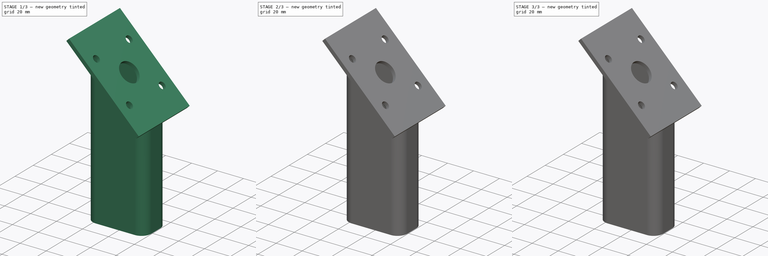
[diagram: build sequence overview — one tinted view per stage of 3, left to right]
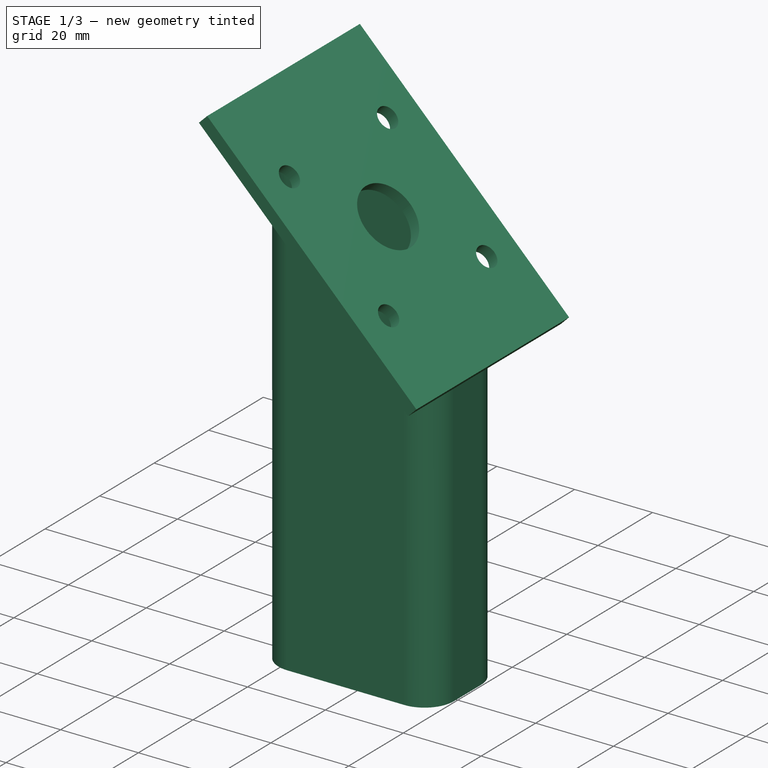
[diagram: stage 1 of 3 — iso view after this stage's code; geometry added in this stage tinted green]
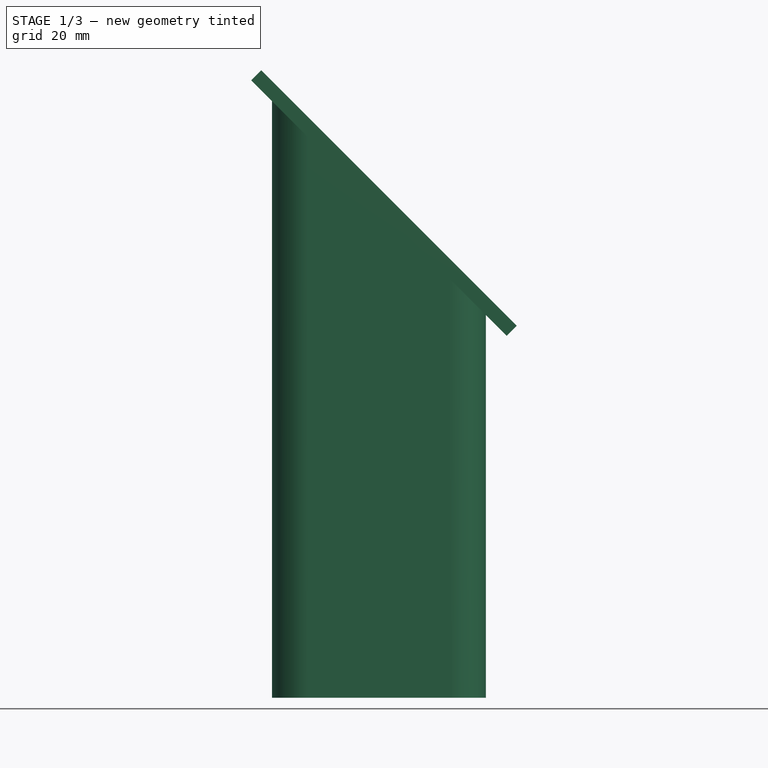
[diagram: stage 1 of 3 — front view after this stage's code; geometry added in this stage tinted green]
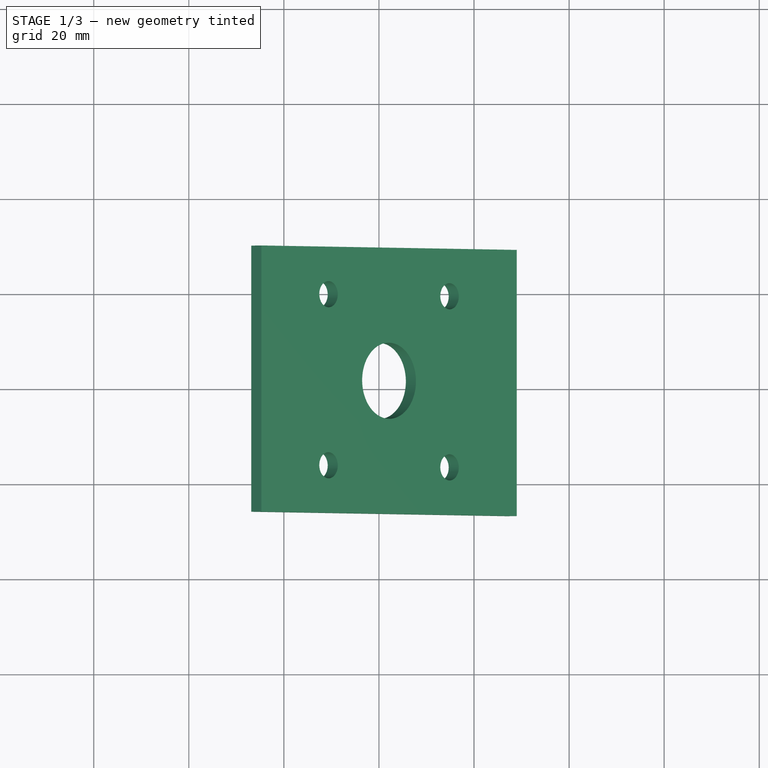
[diagram: stage 1 of 3 — top view after this stage's code; geometry added in this stage tinted green]
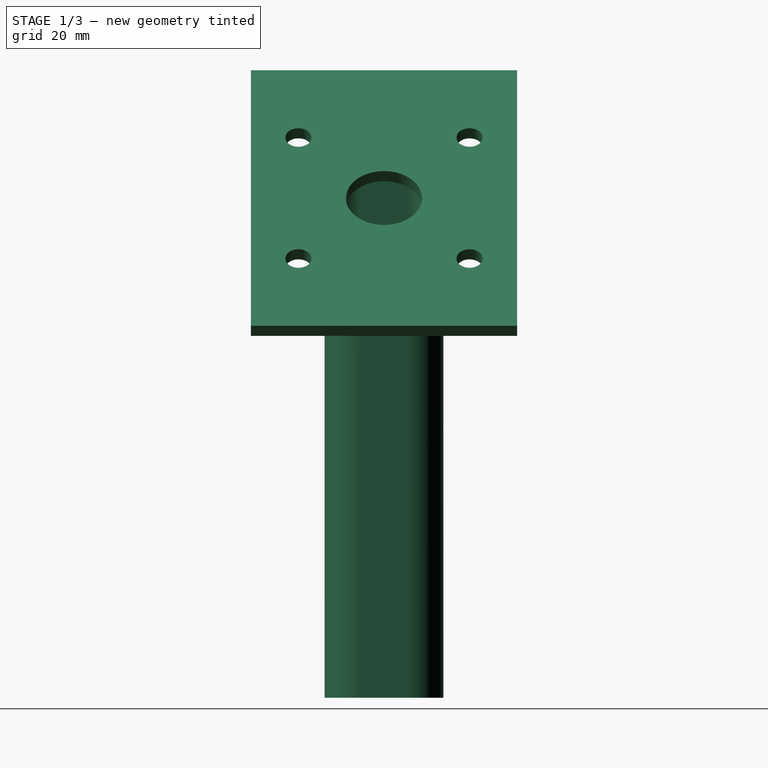
[diagram: stage 1 of 3 — right view after this stage's code; geometry added in this stage tinted green]
FCSTD DOCUMENT  (FreeCAD 0.20R25352 (Git))
Label: scotty panel antenna handle
License: All rights reserved
LicenseURL: http://en.wikipedia.org/wiki/All_rights_reserved
objects: Sketcher::SketchObject×3, PartDesign::Plane×2, PartDesign::Pad×2, PartDesign::Fillet×1, PartDesign::Pocket×1, PartDesign::LinearPattern×1, PartDesign::Body×1
note: 15 computed .brp shape members not serialized (recipe doc carries the construction recipe); baked Part::Feature solids carry a one-line shape summary decoded from their .brp

FEATURE [Sketcher::SketchObject] Sketch
  FullyConstrained = true
  MapMode = 5
  Support = -> [XY_Plane]
  sketch-geometry (20):
    g0: ArcOfCircle CenterX=-15 CenterY=5 CenterZ=0 NormalX=0 NormalY=0 NormalZ=1 AngleXU=0 Radius=7.5 StartAngle=1.5708 EndAngle=3.14159
    g1: LineSegment StartX=-15 StartY=12.5 StartZ=0 EndX=15 EndY=12.5 EndZ=0
    g2: ArcOfCircle CenterX=15 CenterY=5 CenterZ=0 NormalX=0 NormalY=0 NormalZ=1 AngleXU=0 Radius=7.5 StartAngle=1e-16 EndAngle=1.5708
    g3: LineSegment StartX=22.5 StartY=5 StartZ=0 EndX=22.5 EndY=-5 EndZ=0
    g4: ArcOfCircle CenterX=15 CenterY=-5 CenterZ=0 NormalX=0 NormalY=0 NormalZ=1 AngleXU=0 Radius=7.5 StartAngle=4.71239 EndAngle=6.28319
    g5: LineSegment StartX=15 StartY=-12.5 StartZ=0 EndX=-15 EndY=-12.5 EndZ=0
    g6: ArcOfCircle CenterX=-15 CenterY=-5 CenterZ=0 NormalX=0 NormalY=0 NormalZ=1 AngleXU=0 Radius=7.5 StartAngle=3.14159 EndAngle=4.71239
    g7: LineSegment StartX=-22.5 StartY=-5 StartZ=0 EndX=-22.5 EndY=5 EndZ=0
    g8: GeomPoint X=-22.5 Y=12.5 Z=0
    g9: GeomPoint X=22.5 Y=-12.5 Z=0
    g10: ArcOfCircle CenterX=-15 CenterY=5 CenterZ=0 NormalX=0 NormalY=0 NormalZ=1 AngleXU=0 Radius=5.5 StartAngle=1.5708 EndAngle=3.14159
    g11: LineSegment StartX=-15 StartY=10.5 StartZ=0 EndX=15 EndY=10.5 EndZ=0
    g12: ArcOfCircle CenterX=15 CenterY=5 CenterZ=0 NormalX=0 NormalY=0 NormalZ=1 AngleXU=0 Radius=5.5 StartAngle=1e-16 EndAngle=1.5708
    g13: LineSegment StartX=20.5 StartY=5 StartZ=0 EndX=20.5 EndY=-5 EndZ=0
    g14: ArcOfCircle CenterX=15 CenterY=-5 CenterZ=0 NormalX=0 NormalY=0 NormalZ=1 AngleXU=0 Radius=5.5 StartAngle=4.71239 EndAngle=6.28319
    g15: LineSegment StartX=15 StartY=-10.5 StartZ=0 EndX=-15 EndY=-10.5 EndZ=0
    g16: ArcOfCircle CenterX=-15 CenterY=-5 CenterZ=0 NormalX=0 NormalY=0 NormalZ=1 AngleXU=0 Radius=5.5 StartAngle=3.14159 EndAngle=4.71239
    g17: LineSegment StartX=-20.5 StartY=-5 StartZ=0 EndX=-20.5 EndY=5 EndZ=0
    g18: GeomPoint X=-20.5 Y=10.5 Z=0
    g19: GeomPoint X=20.5 Y=-10.5 Z=0
  constraints (46):
    c: Tangent(g0,g1) = 1.5708
    c: Tangent(g1,g2) = 1.5708
    c: Tangent(g2,g3) = 1.5708
    c: Tangent(g3,g4) = 1.5708
    c: Tangent(g4,g5) = 1.5708
    c: Tangent(g5,g6) = 1.5708
    c: Tangent(g6,g7) = 1.5708
    c: Tangent(g7,g0) = 1.5708
    c: Horizontal(g1)
    c: Horizontal(g5)
    c: Vertical(g3)
    c: Vertical(g7)
    c: Equal(g0,g2)
    c: Equal(g2,g4)
    c: Equal(g4,g6)
    c: PointOnObject(g8,g1)
    c: PointOnObject(g8,g7)
    c: PointOnObject(g9,g3)
    c: PointOnObject(g9,g5)
    c: Symmetric(g0,g4,g-1)
    c: DistanceX(g0,g2) = 45
    c: DistanceY(g5,g0) = 25
    c: Diameter(g0) = 15
    c: Tangent(g10,g11) = 1.5708
    c: Tangent(g11,g12) = 1.5708
    c: Tangent(g12,g13) = 1.5708
    c: Tangent(g13,g14) = 1.5708
    c: Tangent(g14,g15) = 1.5708
    c: Tangent(g15,g16) = 1.5708
    c: Tangent(g16,g17) = 1.5708
    c: Tangent(g17,g10) = 1.5708
    c: Horizontal(g11)
    c: Horizontal(g15)
    c: Vertical(g13)
    c: Vertical(g17)
    c: Equal(g10,g12)
    c: Equal(g12,g14)
    c: Equal(g14,g16)
    c: PointOnObject(g18,g11)
    c: PointOnObject(g18,g17)
    c: PointOnObject(g19,g13)
    c: PointOnObject(g19,g15)
    c: Symmetric(g10,g14,g-1)
    c: Vertical(g0,g10)
    c: Horizontal(g0,g10)
    c: DistanceY(g10,g0) = 2
FEATURE [PartDesign::Plane] DatumPlane
  AttachmentOffset = pos=(0,0,103) rot=(0,1,0;0.785398rad)
  Length = 168.871
  MapMode = 5
  Placement = pos=(0,0,103) rot=(0,1,0;0.785398rad)
  ResizeMode = 0
  Support = -> [XY_Plane]
  Width = 74.3614
FEATURE [PartDesign::Pad] Pad
  Direction = (0,0,1)
  Length = 100
  Length2 = 100
  Profile = -> Sketch
  Type = 3
  UpToFace = -> DatumPlane [XY_Plane.]
FEATURE [Sketcher::SketchObject] Sketch001
  FullyConstrained = true
  MapMode = 5
  Placement = pos=(0,0,103) rot=(0,1,0;0.785398rad)
  Support = -> [DatumPlane]
  sketch-geometry (10):
    g0: LineSegment StartX=38 StartY=-28 StartZ=0 EndX=38 EndY=28 EndZ=0
    g1: LineSegment StartX=38 StartY=28 StartZ=0 EndX=-38 EndY=28 EndZ=0
    g2: LineSegment StartX=-38 StartY=28 StartZ=0 EndX=-38 EndY=-28 EndZ=0
    g3: LineSegment StartX=-38 StartY=-28 StartZ=0 EndX=38 EndY=-28 EndZ=0
    g4: GeomPoint X=0 Y=0 Z=0
    g5: Circle CenterX=-18 CenterY=18 CenterZ=0 NormalX=0 NormalY=0 NormalZ=1 AngleXU=0 Radius=2.75
    g6: Circle CenterX=18 CenterY=18 CenterZ=0 NormalX=0 NormalY=0 NormalZ=1 AngleXU=0 Radius=2.75
    g7: Circle CenterX=-18 CenterY=-18 CenterZ=0 NormalX=0 NormalY=0 NormalZ=1 AngleXU=0 Radius=2.75
    g8: Circle CenterX=18 CenterY=-18 CenterZ=0 NormalX=0 NormalY=0 NormalZ=1 AngleXU=0 Radius=2.75
    g9: Circle CenterX=0 CenterY=0 CenterZ=0 NormalX=0 NormalY=0 NormalZ=1 AngleXU=0 Radius=8
  constraints (25):
    c: Coincident(g0,g1)
    c: Coincident(g1,g2)
    c: Coincident(g2,g3)
    c: Coincident(g3,g0)
    c: Horizontal(g1)
    c: Horizontal(g3)
    c: Vertical(g0)
    c: Vertical(g2)
    c: Symmetric(g1,g0,g4)
    c: Coincident(g4,g-1)
    c: DistanceY(g7,g5) = 36
    c: DistanceX(g5,g6) = 36
    c: Horizontal(g5,g6)
    c: Vertical(g6,g8)
    c: Horizontal(g8,g7)
    c: Vertical(g7,g5)
    c: Symmetric(g7,g6,g-1)
    c: Diameter(g5) = 5.5
    c: Equal(g5,g6)
    c: Equal(g5,g7)
    c: Equal(g7,g8)
    c: DistanceY(g5,g1) = 10
    c: DistanceX(g1,g5) = 20
    c: Coincident(g9,g-1)
    c: Diameter(g9) = 16
FEATURE [PartDesign::Pad] Pad001
  BaseFeature = -> Pad
  Direction = (0.707107,0,0.707107)
  Length = 3
  Length2 = 100
  Profile = -> Sketch001
  Type = 0
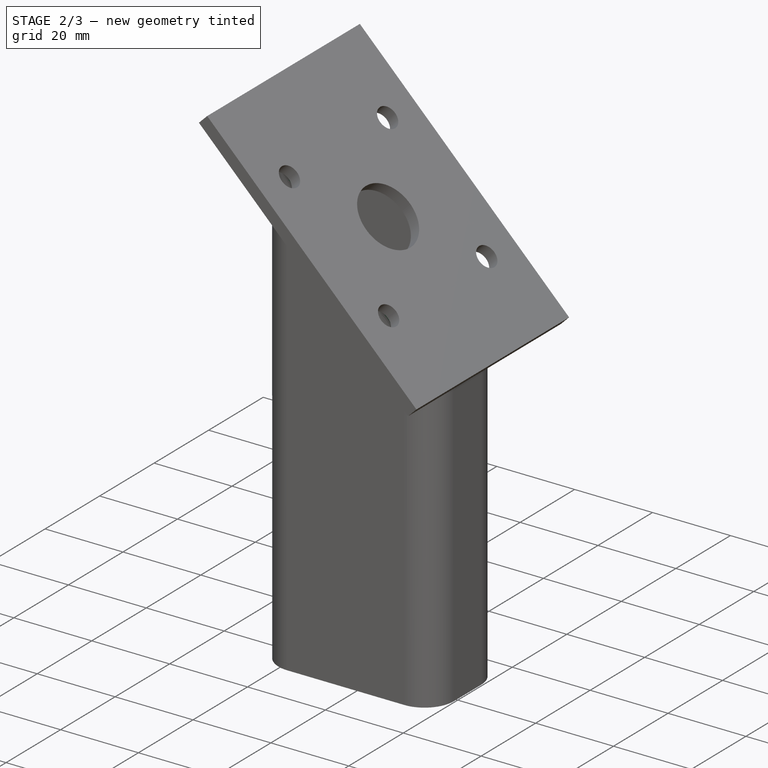
[diagram: stage 2 of 3 — iso view after this stage's code; geometry added in this stage tinted green]
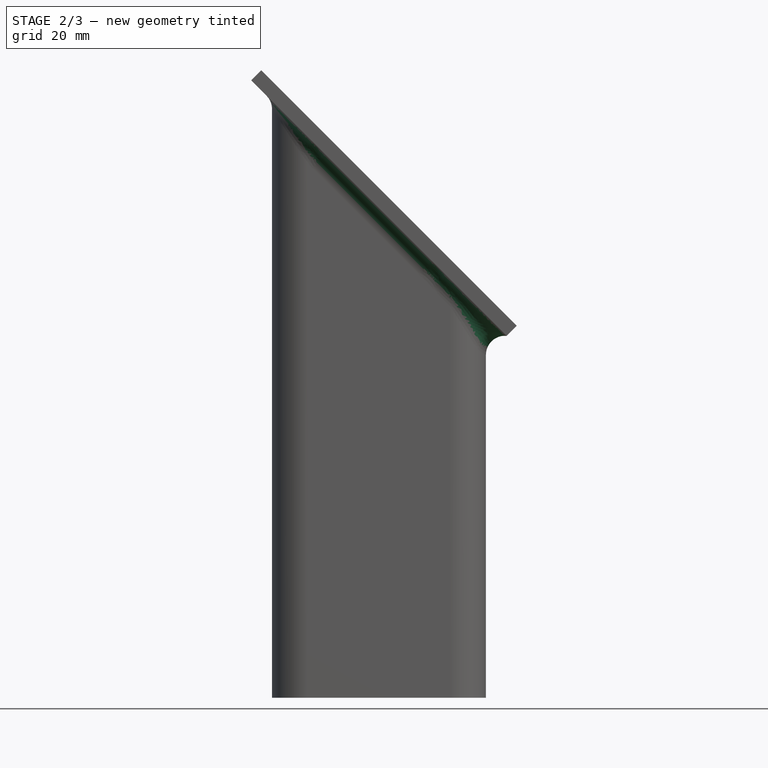
[diagram: stage 2 of 3 — front view after this stage's code; geometry added in this stage tinted green]
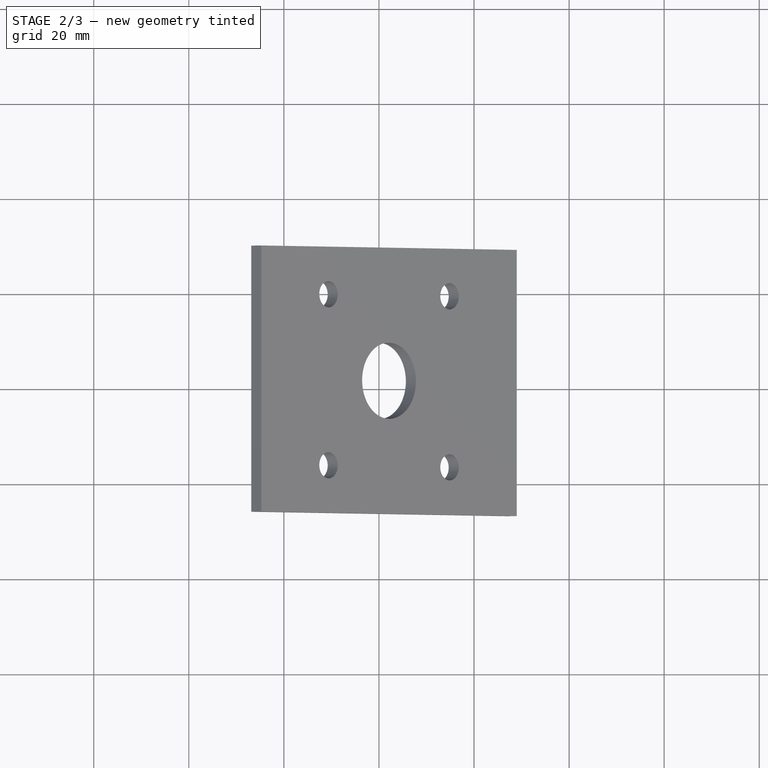
[diagram: stage 2 of 3 — top view after this stage's code; geometry added in this stage tinted green]
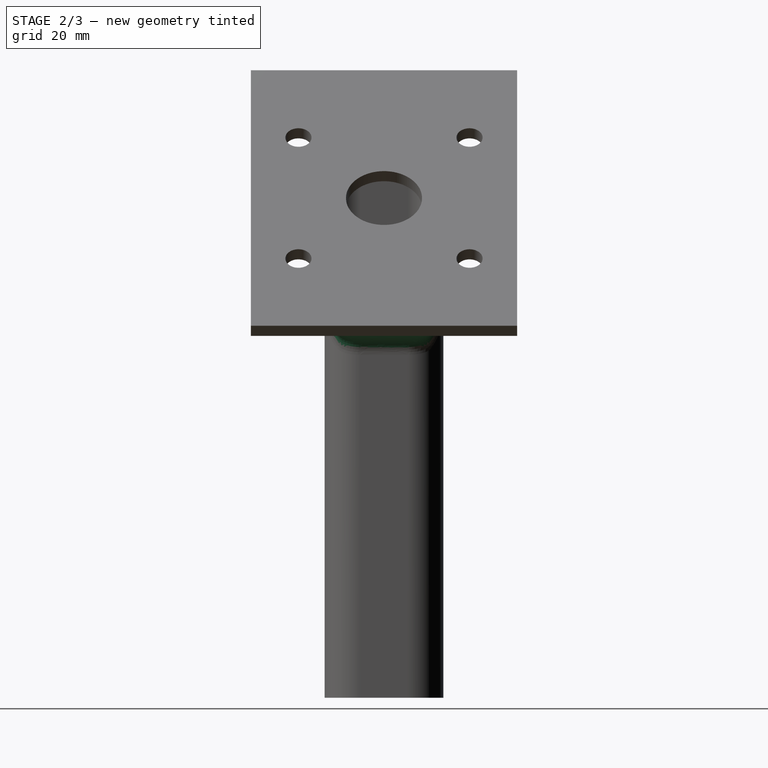
[diagram: stage 2 of 3 — right view after this stage's code; geometry added in this stage tinted green]
FEATURE [PartDesign::Fillet] Fillet
  Base = -> Pad001 [Edge17]
  BaseFeature = -> Pad001
  Radius = 4
  SupportTransform = false
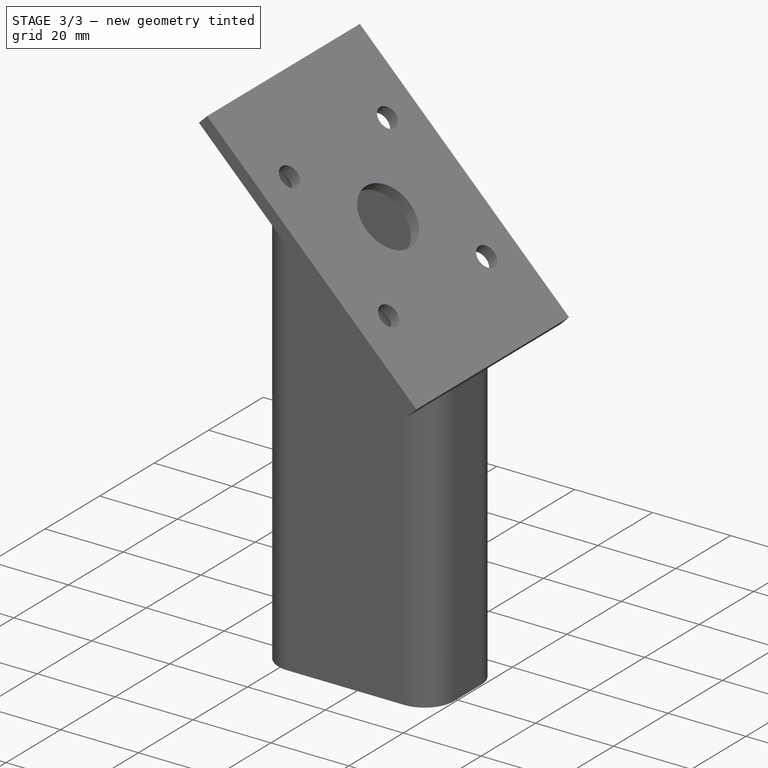
[diagram: stage 3 of 3 — iso view after this stage's code; geometry added in this stage tinted green]
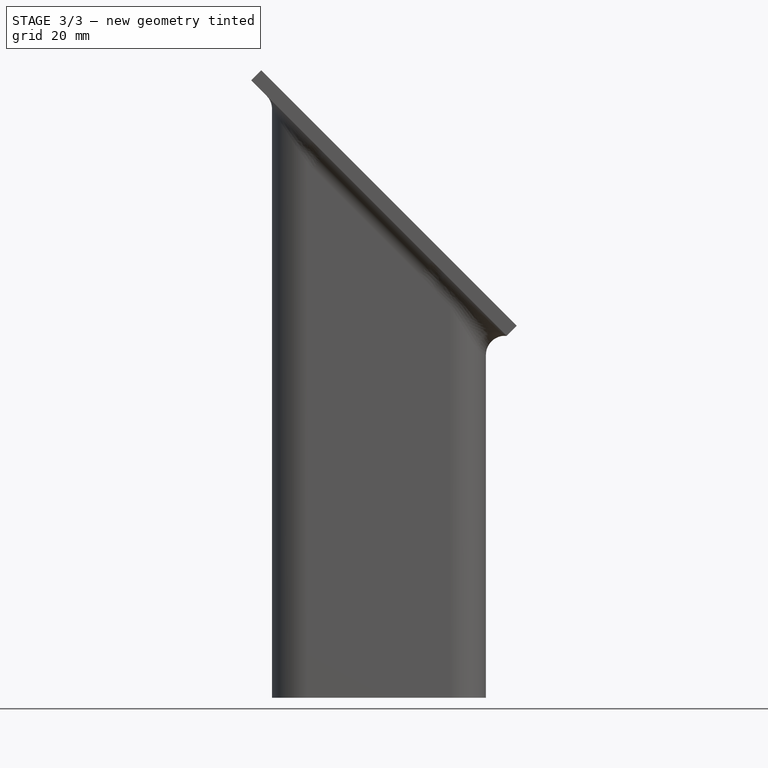
[diagram: stage 3 of 3 — front view after this stage's code; geometry added in this stage tinted green]
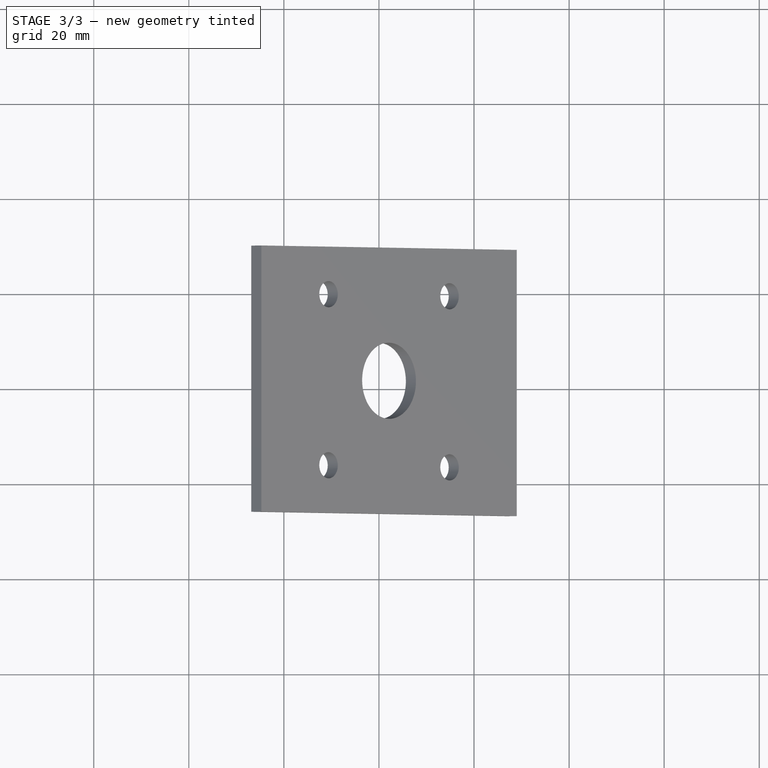
[diagram: stage 3 of 3 — top view after this stage's code; geometry added in this stage tinted green]
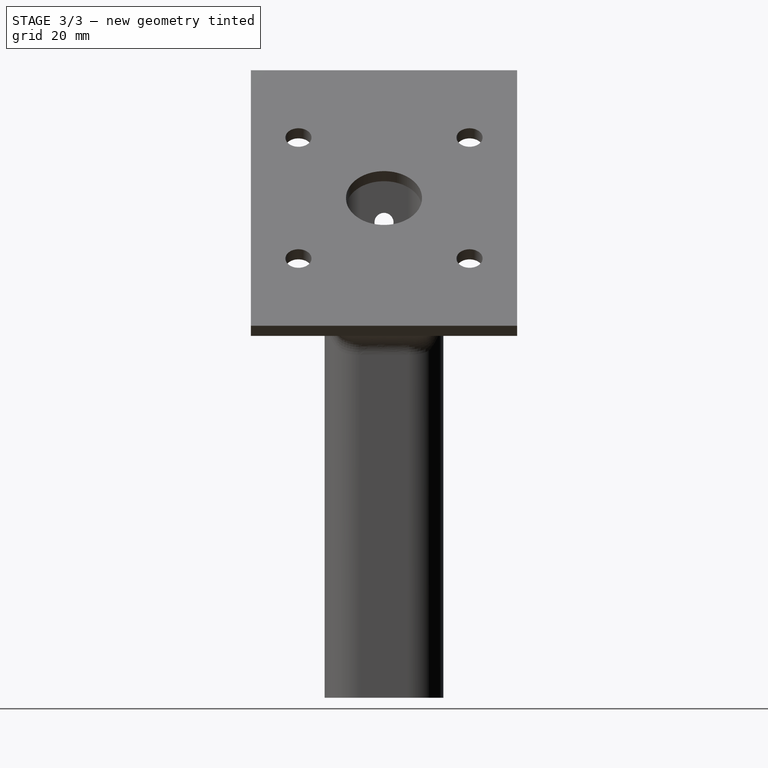
[diagram: stage 3 of 3 — right view after this stage's code; geometry added in this stage tinted green]
FEATURE [PartDesign::Plane] DatumPlane001
  AttachmentOffset = pos=(0,0,-23) rot=(0,0,1;0rad)
  Length = 74.7526
  MapMode = 5
  Placement = pos=(-23,5.1e-15,-5.1e-15) rot=(0.57735,0.57735,0.57735;2.0944rad)
  ResizeMode = 0
  Support = -> [YZ_Plane]
  Width = 175.744
FEATURE [Sketcher::SketchObject] Sketch002
  FullyConstrained = true
  MapMode = 5
  Placement = pos=(-23,5.1e-15,-5.1e-15) rot=(0.57735,0.57735,0.57735;2.0944rad)
  Support = -> [DatumPlane001]
  sketch-geometry (1):
    g0: Circle CenterX=0 CenterY=100 CenterZ=0 NormalX=0 NormalY=0 NormalZ=1 AngleXU=0 Radius=2
  constraints (3):
    c: PointOnObject(g0,g-2)
    c: DistanceY(g-1,g0) = 100
    c: Diameter(g0) = 4
FEATURE [PartDesign::Pocket] Pocket
  BaseFeature = -> Fillet
  Length = 5
  Length2 = 100
  Profile = -> Sketch002
  Reversed = true
  Type = 0
FEATURE [PartDesign::LinearPattern] LinearPattern
  BaseFeature = -> Pocket
  Direction = -> Sketch002 [V_Axis]
  Length = 18
  Occurrences = 4
  Originals = -> [Pocket]
  Overlap = 0
  Reversed = true
FEATURE [PartDesign::Body] Body
  Group = -> [Sketch,Pad,DatumPlane,Sketch001,Pad001,Fillet,DatumPlane001,Sketch002,Pocket,LinearPattern]
  Origin = -> Origin
  Tip = -> LinearPattern
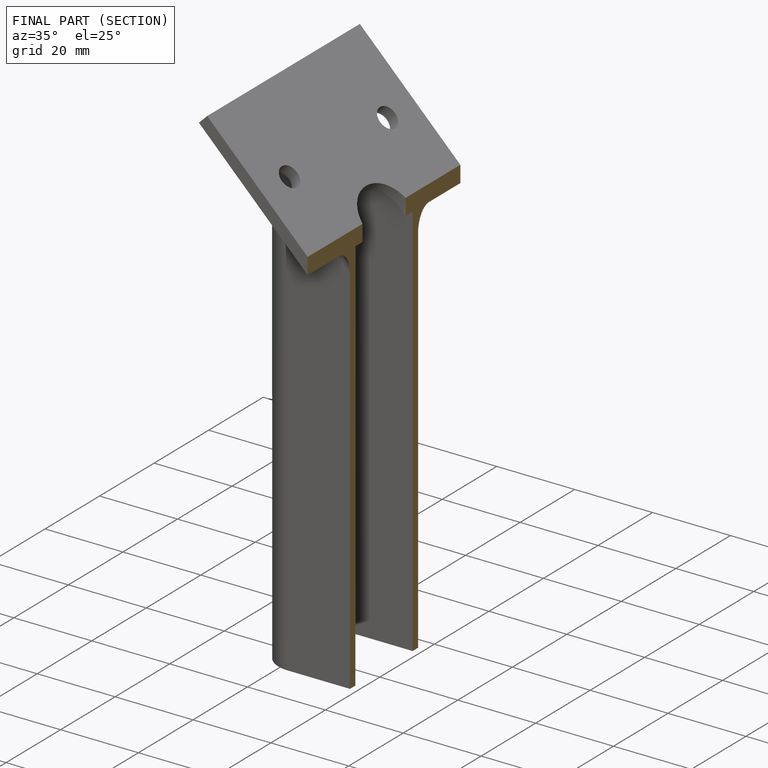
[diagram: finished part — half-section view (interior)]
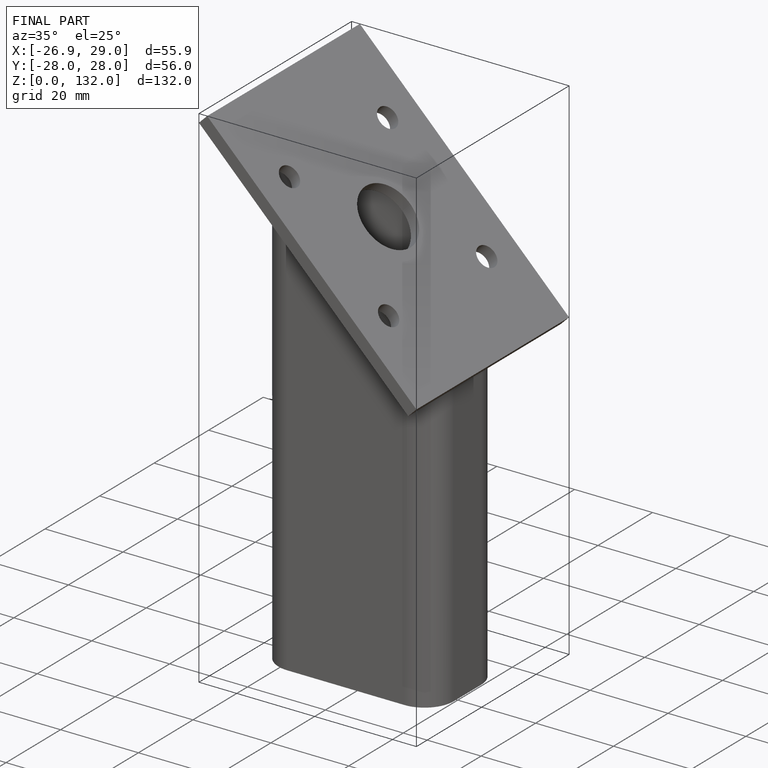
[diagram: finished part — iso view with bounding-box wireframe]
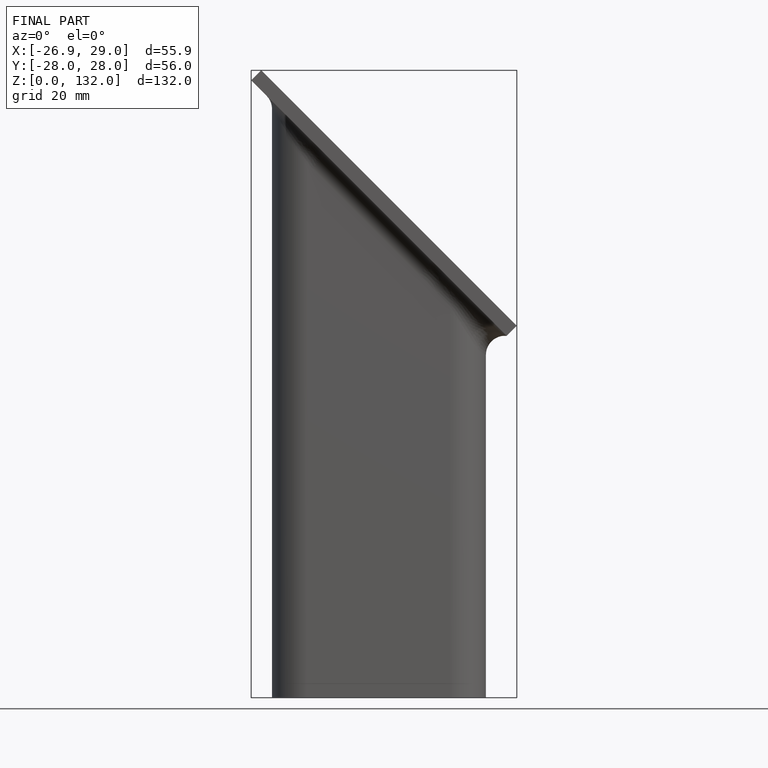
[diagram: finished part — front view with bounding-box wireframe]
